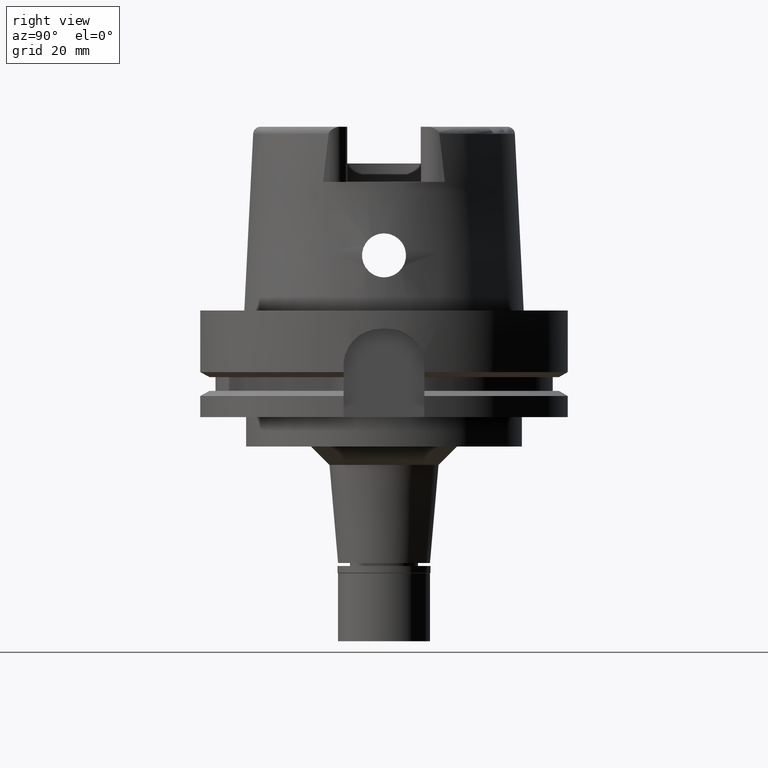
[diagram: clean part render]
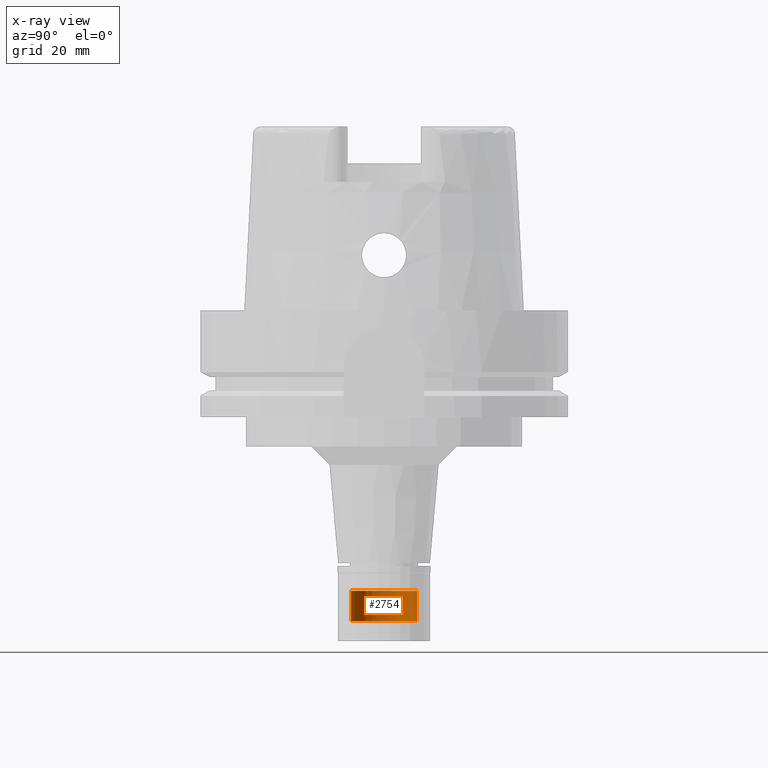
[diagram: x-ray — body ghosted, one internal face saturated and labeled with its STEP entity id]
A machine part, right view, then the same camera in x-ray: the body is ghosted and one INTERNAL B-rep face — a face not visible from any outside direction — is saturated and labeled: STEP entity #2754.
In plain terms, the highlighted cylindrical surface (edge-blend (fillet) strip) has radius 9 mm, axis along (0, 0, -1).
Its self-contained STEP definition (entity closure, byte-faithful):
#25 = DIRECTION ( 'NONE',  ( 0.0000000000000000000, 0.0000000000000000000, 1.000000000000000000 ) ) ;
#64 = VERTEX_POINT ( 'NONE', #4221 ) ;
#78 = LINE ( 'NONE', #5402, #2007 ) ;
#248 = AXIS2_PLACEMENT_3D ( 'NONE', #336, #759, #5587 ) ;
#336 = CARTESIAN_POINT ( 'NONE',  ( 0.0000000000000000000, 0.0000000000000000000, -6.799999999999999822 ) ) ;
#482 = VERTEX_POINT ( 'NONE', #4585 ) ;
#620 = VERTEX_POINT ( 'NONE', #646 ) ;
#646 = CARTESIAN_POINT ( 'NONE',  ( 0.0000000000000000000, 9.000000000000000000, -15.00000000000000000 ) ) ;
#706 = FACE_OUTER_BOUND ( 'NONE', #1103, .T. ) ;
#711 = EDGE_CURVE ( 'NONE', #64, #620, #4888, .T. ) ;
#719 = EDGE_CURVE ( 'NONE', #482, #4461, #5340, .T. ) ;
#759 = DIRECTION ( 'NONE',  ( 0.0000000000000000000, 0.0000000000000000000, 1.000000000000000000 ) ) ;
#882 = CARTESIAN_POINT ( 'NONE',  ( 0.0000000000000000000, 9.000000000000000000, -15.00000000000000000 ) ) ;
#1103 = EDGE_LOOP ( 'NONE', ( #3218, #4538, #5007, #4497 ) ) ;
#1160 = DIRECTION ( 'NONE',  ( 0.0000000000000000000, 0.0000000000000000000, -1.000000000000000000 ) ) ;
#1606 = DIRECTION ( 'NONE',  ( 0.0000000000000000000, -1.000000000000000000, 0.0000000000000000000 ) ) ;
#1984 = EDGE_CURVE ( 'NONE', #64, #4461, #78, .T. ) ;
#2007 = VECTOR ( 'NONE', #4835, 1000.000000000000000 ) ;
#2381 = AXIS2_PLACEMENT_3D ( 'NONE', #2476, #5528, #1606 ) ;
#2476 = CARTESIAN_POINT ( 'NONE',  ( 0.0000000000000000000, 0.0000000000000000000, 0.0000000000000000000 ) ) ;
#2754 = ADVANCED_FACE ( 'NONE', ( #706 ), #3778, .F. ) ;
#3218 = ORIENTED_EDGE ( 'NONE', *, *, #719, .T. ) ;
#3589 = CARTESIAN_POINT ( 'NONE',  ( 0.0000000000000000000, -9.000000000000000000, -6.799999999999999822 ) ) ;
#3778 = CYLINDRICAL_SURFACE ( 'NONE', #2381, 9.000000000000000000 ) ;
#3841 = DIRECTION ( 'NONE',  ( 0.0000000000000000000, -1.000000000000000000, 0.0000000000000000000 ) ) ;
#4207 = CARTESIAN_POINT ( 'NONE',  ( 0.0000000000000000000, 0.0000000000000000000, -15.00000000000000000 ) ) ;
#4221 = CARTESIAN_POINT ( 'NONE',  ( 0.0000000000000000000, -9.000000000000000000, -15.00000000000000000 ) ) ;
#4461 = VERTEX_POINT ( 'NONE', #3589 ) ;
#4497 = ORIENTED_EDGE ( 'NONE', *, *, #5282, .T. ) ;
#4538 = ORIENTED_EDGE ( 'NONE', *, *, #1984, .F. ) ;
#4585 = CARTESIAN_POINT ( 'NONE',  ( 0.0000000000000000000, 9.000000000000000000, -6.799999999999999822 ) ) ;
#4786 = VECTOR ( 'NONE', #25, 1000.000000000000000 ) ;
#4835 = DIRECTION ( 'NONE',  ( 0.0000000000000000000, 0.0000000000000000000, 1.000000000000000000 ) ) ;
#4888 = CIRCLE ( 'NONE', #5533, 9.000000000000000000 ) ;
#5003 = LINE ( 'NONE', #882, #4786 ) ;
#5007 = ORIENTED_EDGE ( 'NONE', *, *, #711, .T. ) ;
#5282 = EDGE_CURVE ( 'NONE', #620, #482, #5003, .T. ) ;
#5340 = CIRCLE ( 'NONE', #248, 9.000000000000000000 ) ;
#5402 = CARTESIAN_POINT ( 'NONE',  ( 0.0000000000000000000, -9.000000000000000000, -15.00000000000000000 ) ) ;
#5528 = DIRECTION ( 'NONE',  ( 0.0000000000000000000, 0.0000000000000000000, -1.000000000000000000 ) ) ;
#5533 = AXIS2_PLACEMENT_3D ( 'NONE', #4207, #1160, #3841 ) ;
#5587 = DIRECTION ( 'NONE',  ( 0.0000000000000000000, 1.000000000000000000, 0.0000000000000000000 ) ) ;